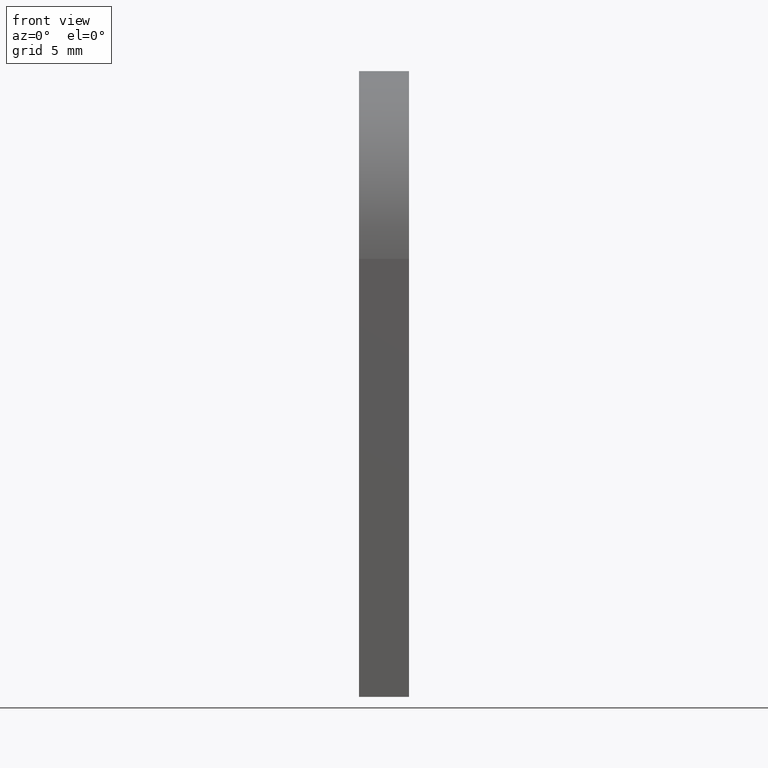
[diagram: clean part render]
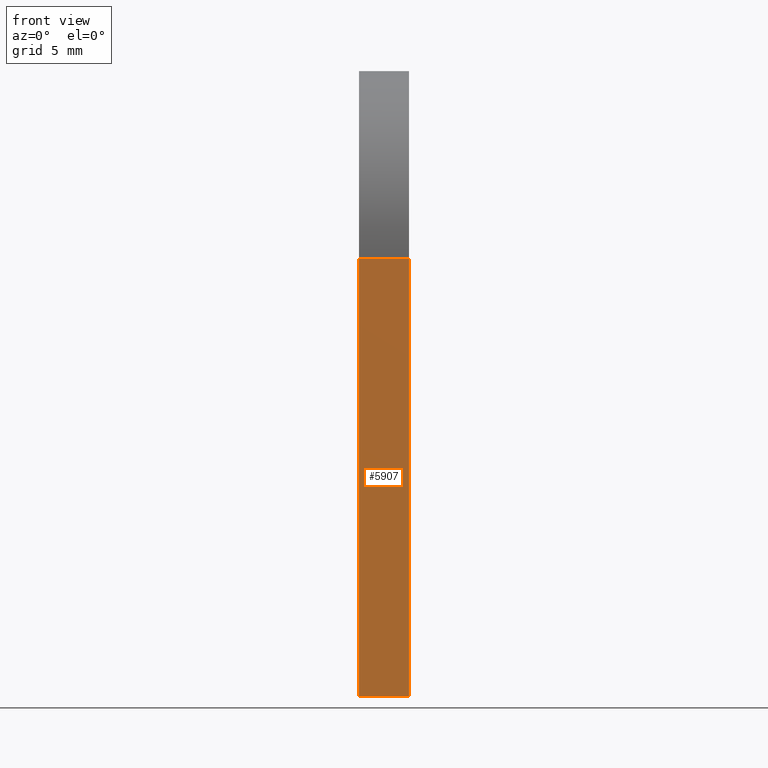
[diagram: same view with one face highlighted and labeled with its STEP entity id]
A machine part, front view. The second image highlights one B-rep face of the part: STEP entity #5907.
In plain terms, the highlighted planar face has unit normal (0, -1, 0).
Its self-contained STEP definition (entity closure, byte-faithful):
#674 = LINE ( 'NONE', #2994, #9979 ) ;
#1168 = VECTOR ( 'NONE', #12428, 1000.000000000000000 ) ;
#1503 = LINE ( 'NONE', #6370, #1168 ) ;
#1597 = ORIENTED_EDGE ( 'NONE', *, *, #7747, .T. ) ;
#1805 = AXIS2_PLACEMENT_3D ( 'NONE', #3888, #11826, #11782 ) ;
#2208 = DIRECTION ( 'NONE',  ( -1.000000000000000000, -0.0000000000000000000, -0.0000000000000000000 ) ) ;
#2826 = VERTEX_POINT ( 'NONE', #8374 ) ;
#2994 = CARTESIAN_POINT ( 'NONE',  ( -2.000000000000000000, -15.00000000000000000, -3.061616997868383000E-015 ) ) ;
#3050 = ORIENTED_EDGE ( 'NONE', *, *, #8811, .F. ) ;
#3696 = VECTOR ( 'NONE', #9861, 1000.000000000000000 ) ;
#3709 = VECTOR ( 'NONE', #2208, 1000.000000000000000 ) ;
#3888 = CARTESIAN_POINT ( 'NONE',  ( 2.000000000000000000, -15.00000000000000000, -3.061616997868383000E-015 ) ) ;
#4609 = ORIENTED_EDGE ( 'NONE', *, *, #8483, .T. ) ;
#4856 = PLANE ( 'NONE',  #1805 ) ;
#4929 = CARTESIAN_POINT ( 'NONE',  ( -2.000000000000000000, -15.00000000000000000, -3.061616997868383000E-015 ) ) ;
#5449 = LINE ( 'NONE', #8339, #3709 ) ;
#5907 = ADVANCED_FACE ( 'NONE', ( #12867 ), #4856, .T. ) ;
#6370 = CARTESIAN_POINT ( 'NONE',  ( 2.000000000000000000, -15.00000000000000000, -3.061616997868383000E-015 ) ) ;
#6467 = ORIENTED_EDGE ( 'NONE', *, *, #9145, .F. ) ;
#7110 = VERTEX_POINT ( 'NONE', #9918 ) ;
#7747 = EDGE_CURVE ( 'NONE', #7110, #7885, #1503, .T. ) ;
#7885 = VERTEX_POINT ( 'NONE', #12917 ) ;
#8339 = CARTESIAN_POINT ( 'NONE',  ( 2.000000000000000000, -14.99999999999999800, 34.99999999999999300 ) ) ;
#8374 = CARTESIAN_POINT ( 'NONE',  ( -2.000000000000000000, -14.99999999999999800, 34.99999999999999300 ) ) ;
#8483 = EDGE_CURVE ( 'NONE', #7885, #2826, #5449, .T. ) ;
#8811 = EDGE_CURVE ( 'NONE', #12350, #2826, #674, .T. ) ;
#9145 = EDGE_CURVE ( 'NONE', #7110, #12350, #9348, .T. ) ;
#9348 = LINE ( 'NONE', #11806, #3696 ) ;
#9766 = EDGE_LOOP ( 'NONE', ( #3050, #6467, #1597, #4609 ) ) ;
#9861 = DIRECTION ( 'NONE',  ( -1.000000000000000000, -0.0000000000000000000, -0.0000000000000000000 ) ) ;
#9918 = CARTESIAN_POINT ( 'NONE',  ( 2.000000000000000000, -15.00000000000000000, -3.061616997868383000E-015 ) ) ;
#9921 = DIRECTION ( 'NONE',  ( 0.0000000000000000000, 4.956352788505163400E-017, 1.000000000000000000 ) ) ;
#9979 = VECTOR ( 'NONE', #9921, 1000.000000000000000 ) ;
#11782 = DIRECTION ( 'NONE',  ( 0.0000000000000000000, -4.956352788505163400E-017, -1.000000000000000000 ) ) ;
#11806 = CARTESIAN_POINT ( 'NONE',  ( 2.000000000000000000, -15.00000000000000000, -3.061616997868383000E-015 ) ) ;
#11826 = DIRECTION ( 'NONE',  ( 0.0000000000000000000, -1.000000000000000000, 4.956352788505163400E-017 ) ) ;
#12350 = VERTEX_POINT ( 'NONE', #4929 ) ;
#12428 = DIRECTION ( 'NONE',  ( 0.0000000000000000000, 4.956352788505163400E-017, 1.000000000000000000 ) ) ;
#12867 = FACE_OUTER_BOUND ( 'NONE', #9766, .T. ) ;
#12917 = CARTESIAN_POINT ( 'NONE',  ( 2.000000000000000000, -14.99999999999999800, 34.99999999999999300 ) ) ;